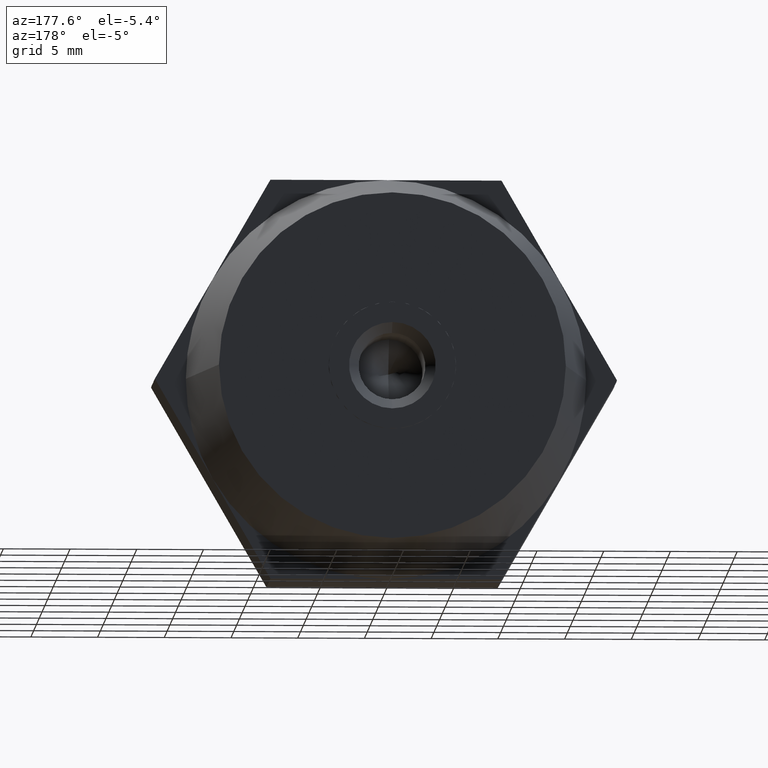
[diagram: clean part render]
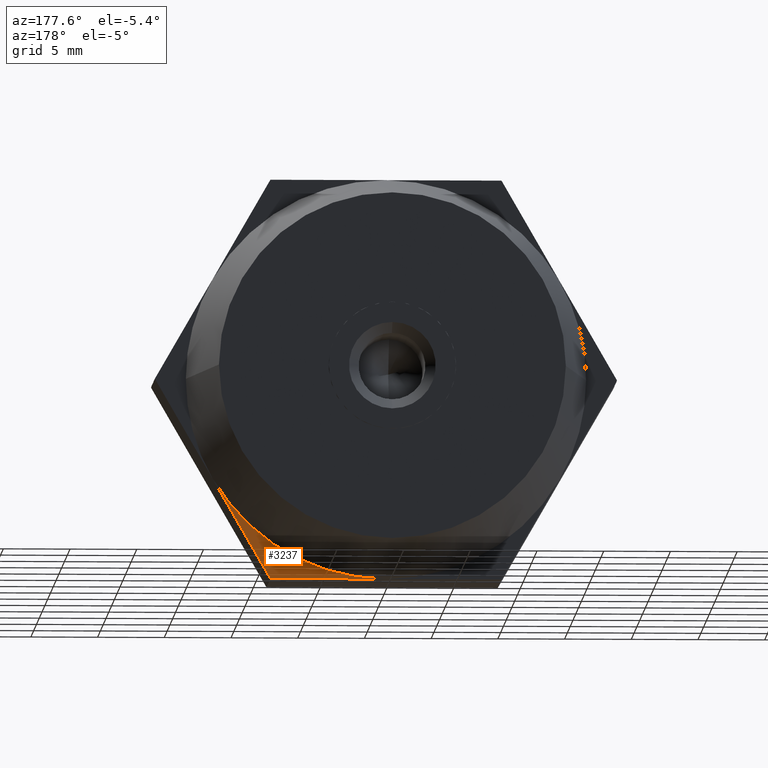
[diagram: same view with one face highlighted and labeled with its STEP entity id]
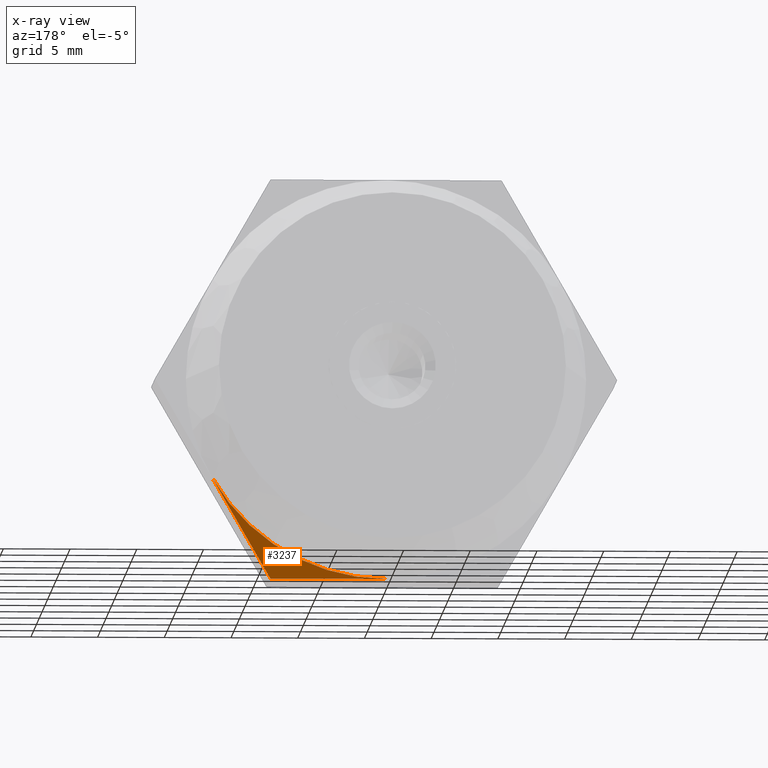
[diagram: x-ray of the same camera — body ghosted, the highlighted face saturated]
A machine part, auxiliary view. The second image highlights one B-rep face of the part: STEP entity #3237.
The next image is the same camera in x-ray: the body ghosted, the highlighted face saturated — about 0% of this face is hidden behind the body in this view.
In plain terms, the highlighted planar face has unit normal (0, 1, 0).
Its self-contained STEP definition (entity closure, byte-faithful):
#75 = VECTOR ( 'NONE', #1978, 1000.000000000000000 ) ;
#131 = VERTEX_POINT ( 'NONE', #1009 ) ;
#212 = EDGE_CURVE ( 'NONE', #1828, #131, #1691, .T. ) ;
#456 = DIRECTION ( 'NONE',  ( 0.0000000000000000000, 0.0000000000000000000, 1.000000000000000000 ) ) ;
#480 = DIRECTION ( 'NONE',  ( -1.000000000000000000, 0.0000000000000000000, 0.0000000000000000000 ) ) ;
#730 = ORIENTED_EDGE ( 'NONE', *, *, #212, .T. ) ;
#933 = FACE_OUTER_BOUND ( 'NONE', #3371, .T. ) ;
#1009 = CARTESIAN_POINT ( 'NONE',  ( 8.660254037844380200, 3.500000000000000000, -15.00000000000000000 ) ) ;
#1115 = CARTESIAN_POINT ( 'NONE',  ( -1.949687717460415100E-031, 3.500000000000000000, -15.00000000000000000 ) ) ;
#1513 = CIRCLE ( 'NONE', #1887, 15.00000000000000000 ) ;
#1691 = LINE ( 'NONE', #2255, #75 ) ;
#1695 = CARTESIAN_POINT ( 'NONE',  ( 8.660254037844380200, 3.500000000000000000, -15.00000000000000000 ) ) ;
#1828 = VERTEX_POINT ( 'NONE', #2113 ) ;
#1887 = AXIS2_PLACEMENT_3D ( 'NONE', #3128, #3717, #3113 ) ;
#1941 = AXIS2_PLACEMENT_3D ( 'NONE', #1945, #2261, #456 ) ;
#1945 = CARTESIAN_POINT ( 'NONE',  ( 0.0000000000000000000, 3.500000000000000000, 0.0000000000000000000 ) ) ;
#1962 = PLANE ( 'NONE',  #1941 ) ;
#1978 = DIRECTION ( 'NONE',  ( -0.4999999999999998900, 0.0000000000000000000, -0.8660254037844387100 ) ) ;
#2027 = ORIENTED_EDGE ( 'NONE', *, *, #3725, .T. ) ;
#2099 = VERTEX_POINT ( 'NONE', #1115 ) ;
#2113 = CARTESIAN_POINT ( 'NONE',  ( 12.99038105676658000, 3.500000000000000000, -7.500000000000000000 ) ) ;
#2255 = CARTESIAN_POINT ( 'NONE',  ( 17.32050807568875300, 3.500000000000000000, -5.044204055299929100E-015 ) ) ;
#2261 = DIRECTION ( 'NONE',  ( 0.0000000000000000000, 1.000000000000000000, 0.0000000000000000000 ) ) ;
#2373 = LINE ( 'NONE', #1695, #3778 ) ;
#3113 = DIRECTION ( 'NONE',  ( -1.000000000000000000, -1.156482317317871500E-016, 0.0000000000000000000 ) ) ;
#3128 = CARTESIAN_POINT ( 'NONE',  ( 1.408343819019456000E-015, 3.500000000000000000, 0.0000000000000000000 ) ) ;
#3207 = EDGE_CURVE ( 'NONE', #1828, #2099, #1513, .T. ) ;
#3237 = ADVANCED_FACE ( 'NONE', ( #933 ), #1962, .T. ) ;
#3371 = EDGE_LOOP ( 'NONE', ( #3520, #730, #2027 ) ) ;
#3520 = ORIENTED_EDGE ( 'NONE', *, *, #3207, .F. ) ;
#3717 = DIRECTION ( 'NONE',  ( -1.224646799147352000E-016, 1.000000000000000000, 0.0000000000000000000 ) ) ;
#3725 = EDGE_CURVE ( 'NONE', #131, #2099, #2373, .T. ) ;
#3778 = VECTOR ( 'NONE', #480, 1000.000000000000000 ) ;